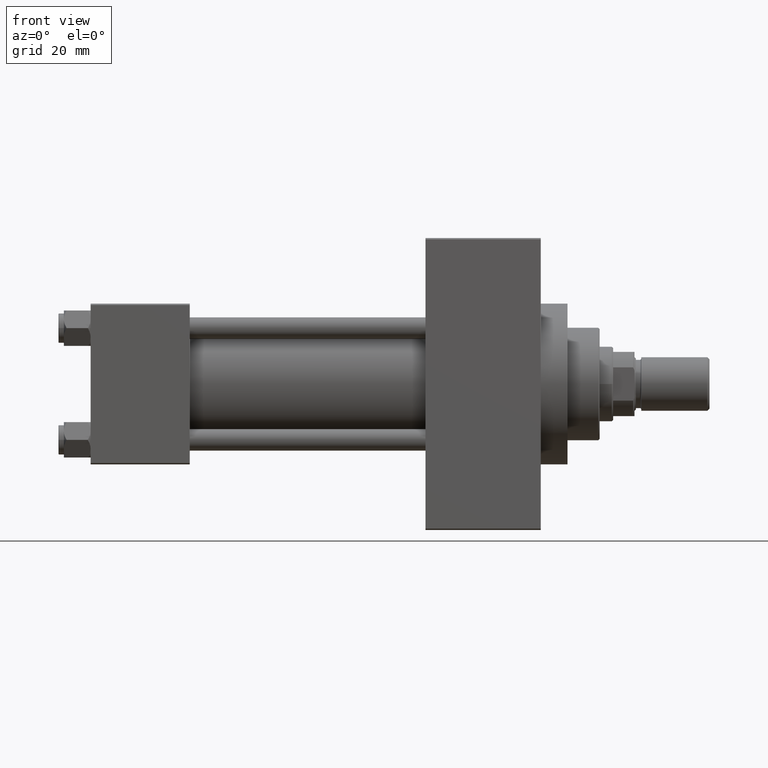
[diagram: clean part render]
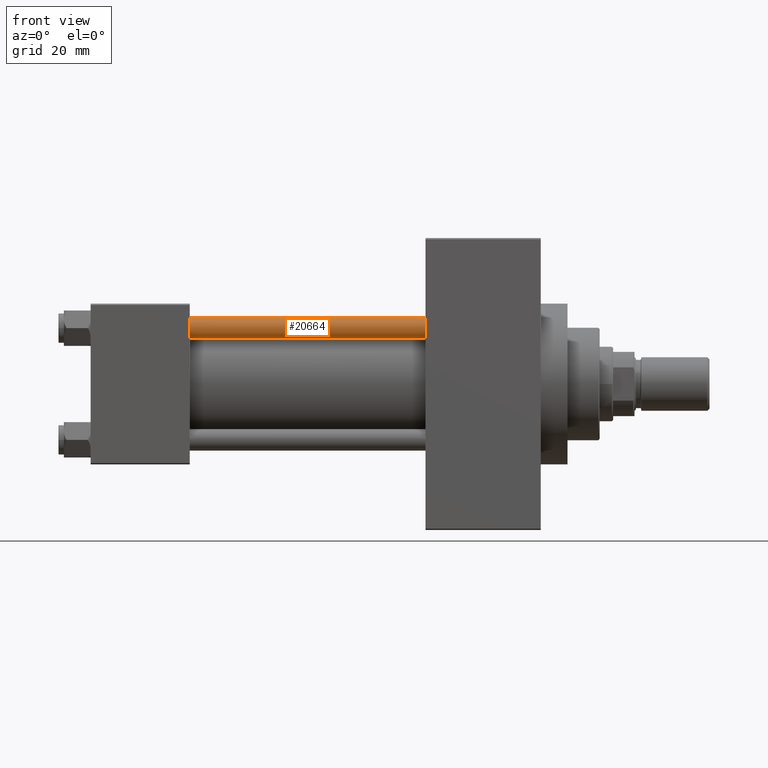
[diagram: same view with one face highlighted and labeled with its STEP entity id]
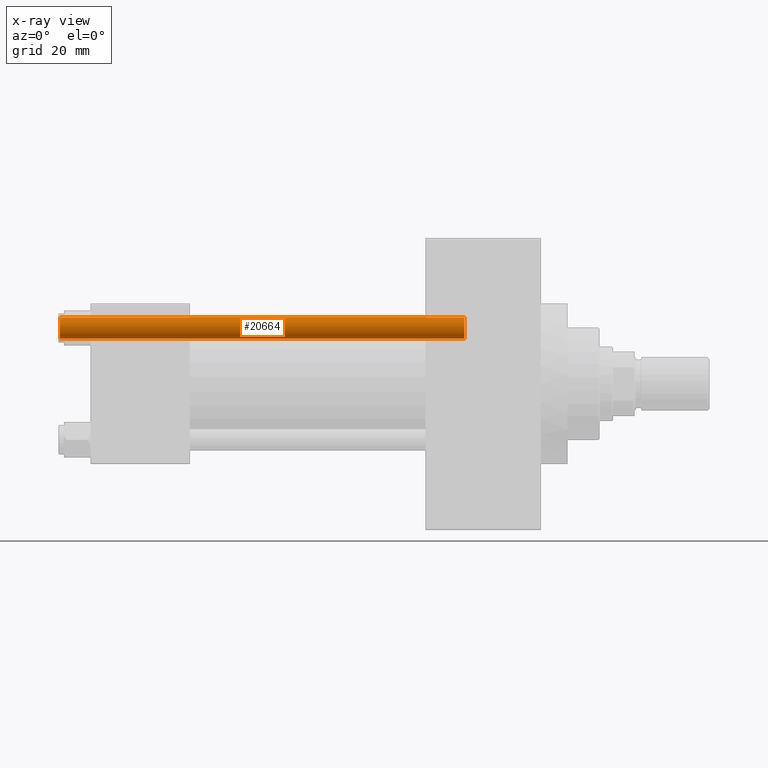
[diagram: x-ray of the same camera — body ghosted, the highlighted face saturated]
A machine part, front view. The second image highlights one B-rep face of the part: STEP entity #20664.
The next image is the same camera in x-ray: the body ghosted, the highlighted face saturated — about 0% of this face is hidden behind the body in this view.
In plain terms, the highlighted cylindrical surface (edge-blend (fillet) strip) has radius 4 mm, axis along (1, 0, 0).
Its self-contained STEP definition (entity closure, byte-faithful):
#182 = VERTEX_POINT ( 'NONE', #27810 ) ;
#509 = VECTOR ( 'NONE', #9675, 1000.000000000000000 ) ;
#1000 = AXIS2_PLACEMENT_3D ( 'NONE', #16516, #31205, #42538 ) ;
#5653 = AXIS2_PLACEMENT_3D ( 'NONE', #13980, #32071, #25090 ) ;
#7837 = DIRECTION ( 'NONE',  ( -0.000000000000000000, -0.000000000000000000, 1.000000000000000000 ) ) ;
#9384 = EDGE_CURVE ( 'NONE', #182, #33403, #24197, .T. ) ;
#9675 = DIRECTION ( 'NONE',  ( -0.000000000000000000, -0.000000000000000000, -1.000000000000000000 ) ) ;
#10656 = EDGE_LOOP ( 'NONE', ( #34400, #12902, #15332, #36732 ) ) ;
#12902 = ORIENTED_EDGE ( 'NONE', *, *, #37080, .T. ) ;
#13980 = CARTESIAN_POINT ( 'NONE',  ( 0.000000000000000000, 0.000000000000000000, 152.0000000000000000 ) ) ;
#14052 = DIRECTION ( 'NONE',  ( -0.000000000000000000, -0.000000000000000000, -1.000000000000000000 ) ) ;
#15172 = CARTESIAN_POINT ( 'NONE',  ( -4.000000000000000000, 0.000000000000000000, 0.5000000000000281997 ) ) ;
#15332 = ORIENTED_EDGE ( 'NONE', *, *, #46677, .T. ) ;
#16516 = CARTESIAN_POINT ( 'NONE',  ( 0.000000000000000000, 0.000000000000000000, 151.5000000000000284 ) ) ;
#17677 = CARTESIAN_POINT ( 'NONE',  ( 4.000000000000000000, 4.898587196589412829E-16, 152.0000000000000000 ) ) ;
#20505 = CARTESIAN_POINT ( 'NONE',  ( -4.000000000000000000, 0.000000000000000000, 152.0000000000000000 ) ) ;
#20664 = ADVANCED_FACE ( 'NONE', ( #20981 ), #40033, .T. ) ;
#20981 = FACE_OUTER_BOUND ( 'NONE', #10656, .T. ) ;
#22535 = DIRECTION ( 'NONE',  ( 1.000000000000000000, 0.000000000000000000, 0.000000000000000000 ) ) ;
#23869 = CARTESIAN_POINT ( 'NONE',  ( 4.000000000000000000, 4.898587196589412829E-16, 0.5000000000000281997 ) ) ;
#24197 = CIRCLE ( 'NONE', #1000, 4.000000000000000000 ) ;
#25090 = DIRECTION ( 'NONE',  ( -1.000000000000000000, 0.000000000000000000, 0.000000000000000000 ) ) ;
#25235 = VECTOR ( 'NONE', #14052, 1000.000000000000000 ) ;
#25523 = AXIS2_PLACEMENT_3D ( 'NONE', #29771, #7837, #22535 ) ;
#27810 = CARTESIAN_POINT ( 'NONE',  ( -4.000000000000000000, 0.000000000000000000, 151.5000000000000284 ) ) ;
#29771 = CARTESIAN_POINT ( 'NONE',  ( 0.000000000000000000, 0.000000000000000000, 0.5000000000000281997 ) ) ;
#31205 = DIRECTION ( 'NONE',  ( 0.000000000000000000, 0.000000000000000000, -1.000000000000000000 ) ) ;
#31581 = LINE ( 'NONE', #20505, #509 ) ;
#32071 = DIRECTION ( 'NONE',  ( -0.000000000000000000, -0.000000000000000000, -1.000000000000000000 ) ) ;
#33236 = CIRCLE ( 'NONE', #25523, 4.000000000000000000 ) ;
#33245 = VERTEX_POINT ( 'NONE', #23869 ) ;
#33403 = VERTEX_POINT ( 'NONE', #44359 ) ;
#34400 = ORIENTED_EDGE ( 'NONE', *, *, #9384, .T. ) ;
#34994 = EDGE_CURVE ( 'NONE', #182, #40862, #31581, .T. ) ;
#36732 = ORIENTED_EDGE ( 'NONE', *, *, #34994, .F. ) ;
#36891 = LINE ( 'NONE', #17677, #25235 ) ;
#37080 = EDGE_CURVE ( 'NONE', #33403, #33245, #36891, .T. ) ;
#40033 = CYLINDRICAL_SURFACE ( 'NONE', #5653, 4.000000000000000000 ) ;
#40862 = VERTEX_POINT ( 'NONE', #15172 ) ;
#42538 = DIRECTION ( 'NONE',  ( 1.000000000000000000, 0.000000000000000000, 0.000000000000000000 ) ) ;
#44359 = CARTESIAN_POINT ( 'NONE',  ( 4.000000000000000000, 4.898587196589412829E-16, 151.5000000000000284 ) ) ;
#46677 = EDGE_CURVE ( 'NONE', #33245, #40862, #33236, .T. ) ;